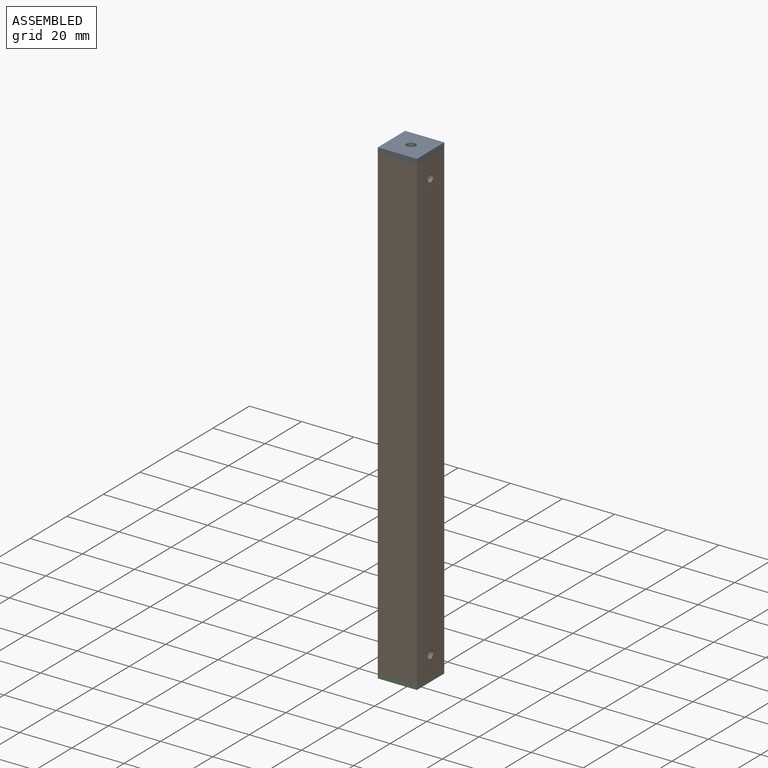
[diagram: assembled view]
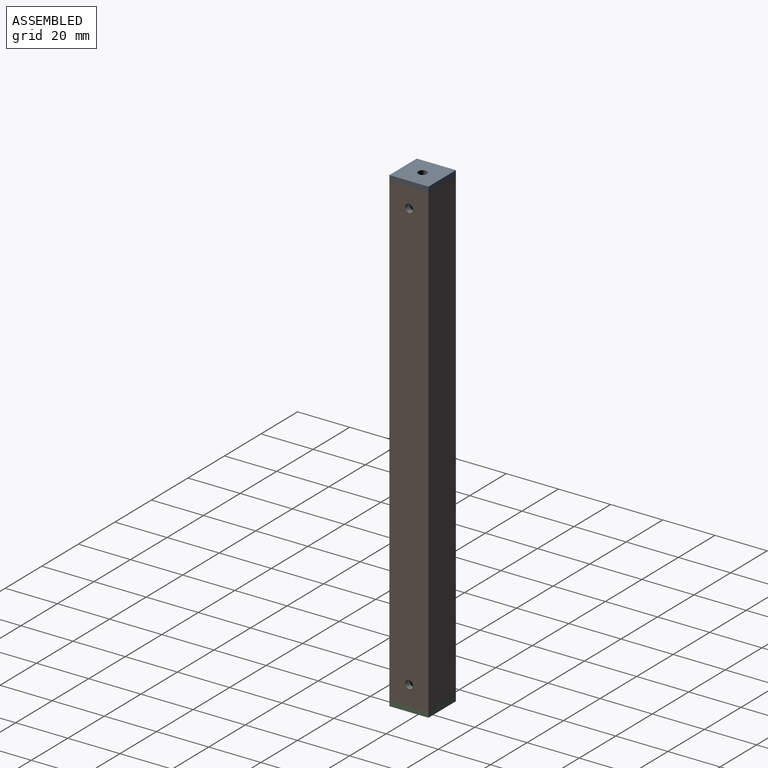
[diagram: assembled view, second angle]
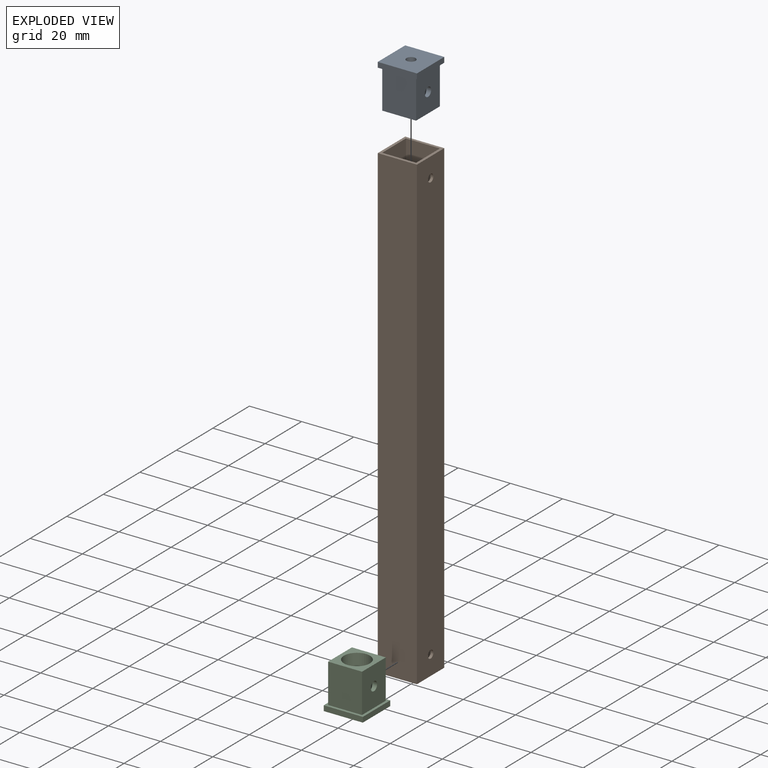
[diagram: exploded view]
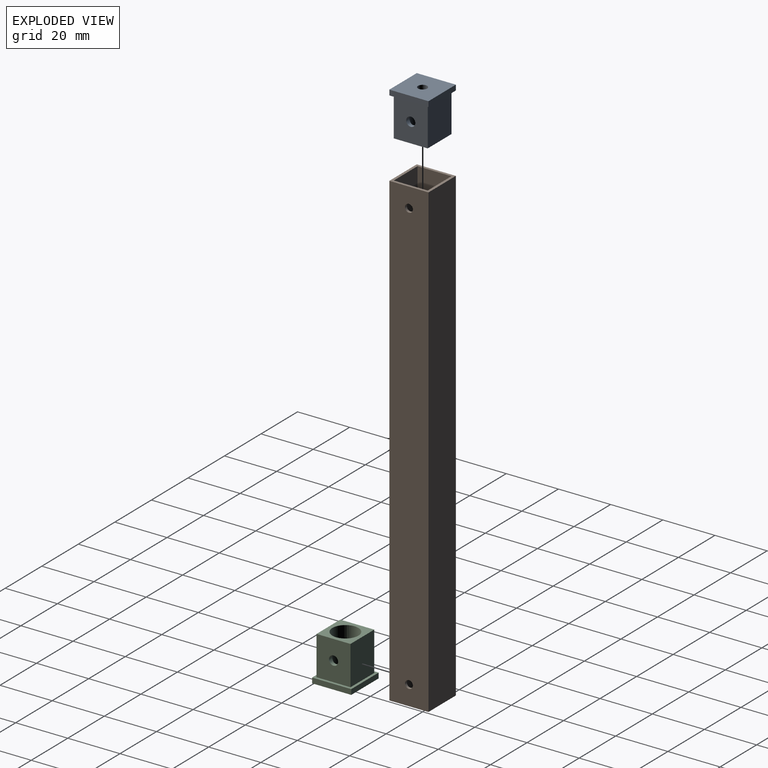
[diagram: exploded view, second angle]
ASSEMBLY  parts=3 mates=6
PART A: 16 faces, bbox 15x15x17 mm
  f0: cylinder r=5mm len=14mm, axis (0,0,1), area 420.3mm2, adj f11,f13,f14,f15
  f1: plane 15x2mm, normal (-1,0,0), area 30mm2, adj f2,f4,f5,f6
  f2: plane 15x2mm, normal (0,-1,0), area 30mm2, adj f1,f3,f5,f6
  f3: plane 15x2mm, normal (1,0,0), area 30mm2, adj f2,f4,f5,f6
  f4: plane 15x2mm, normal (0,1,0), area 30mm2, adj f1,f3,f5,f6
  f5: plane 15x15mm, normal (0,0,1), area 56mm2, adj f1,f2,f3,f4,f7,f8,f9,f10
  f6: plane 15x15mm, normal (0,0,-1), area 215.4mm2, adj f1,f2,f3,f4,f12
  f7: plane 15x13mm, normal (-1,0,0), area 195mm2, adj f5,f8,f10,f11
  f8: plane 15x13mm, normal (0,-1,0), area 185.4mm2, adj f5,f7,f9,f11,f14
  f9: plane 15x13mm, normal (1,0,0), area 195mm2, adj f5,f8,f10,f11
  f10: plane 15x13mm, normal (0,1,0), area 185.4mm2, adj f5,f7,f9,f11,f15
  f11: plane 13x13mm, normal (0,0,1), area 90.5mm2, adj f0,f7,f8,f9,f10
  f12: cylinder r=1.75mm len=3.5mm, axis (0,0,1), area 33mm2, adj f6,f13
  f13: plane 10x10mm, normal (0,0,1), area 68.9mm2, adj f0,f12
  f14: cylinder r=1.75mm len=3.5mm, axis (0,-1,0), area 18.2mm2, adj f0,f8
  f15: cylinder r=1.75mm len=3.5mm, axis (0,-1,0), area 18.2mm2, adj f0,f10
PART B: 14 faces, bbox 15x15x180 mm
  f0: plane 180x15mm, normal (0,1,0), area 2700mm2, adj f1,f7,f8,f9
  f1: plane 180x15mm, normal (-1,0,0), area 2685.9mm2, adj f0,f2,f8,f9,f11,f13
  f2: plane 180x15mm, normal (0,-1,0), area 2700mm2, adj f1,f7,f8,f9
  f3: plane 180x13mm, normal (1,0,0), area 2325.9mm2, adj f4,f6,f8,f9,f11,f13
  f4: plane 180x13mm, normal (0,-1,0), area 2340mm2, adj f3,f5,f8,f9
  f5: plane 180x13mm, normal (-1,0,0), area 2325.9mm2, adj f4,f6,f8,f9,f10,f12
  f6: plane 180x13mm, normal (0,1,0), area 2340mm2, adj f3,f5,f8,f9
  f7: plane 180x15mm, normal (1,0,0), area 2685.9mm2, adj f0,f2,f8,f9,f10,f12
  f8: plane 15x15mm, normal (0,0,1), area 56mm2, adj f0,f1,f2,f3,f4,f5,f6,f7
  f9: plane 15x15mm, normal (0,0,-1), area 56mm2, adj f0,f1,f2,f3,f4,f5,f6,f7
  f10: cylinder r=1.5mm len=3mm, axis (-1,0,0), area 9.4mm2, adj f5,f7
  f11: cylinder r=1.5mm len=3mm, axis (-1,0,0), area 9.4mm2, adj f1,f3
  f12: cylinder r=1.5mm len=3mm, axis (-1,0,0), area 9.4mm2, adj f5,f7
  f13: cylinder r=1.5mm len=3mm, axis (-1,0,0), area 9.4mm2, adj f1,f3
PART C: same geometry as A
PLACE A rot(axis=(0.71,0.71,0),180deg) t=(0,0,92)mm
PLACE B at identity fixed
PLACE C rot(axis=(0,0,-1),90deg) t=(0,0,-92)mm
MATE planar A.f5 <-> B.f8  axis (0,0,-1) through (0,-6.5,90)mm
MATE planar C.f7 <-> B.f4  axis (0,1,0) through (0,6.5,-82.5)mm
MATE planar A.f14 <-> B.f3  axis (-1,0,0) through (-6.5,0,82.5)mm
MATE planar C.f5 <-> B.f9  axis (0,0,1) through (0,-6.5,-90)mm
MATE planar C.f14 <-> B.f3  axis (-1,0,0) through (-6.5,0,-82.5)mm
MATE planar A.f7 <-> B.f6  axis (0,-1,0) through (0,-6.5,82.5)mm
